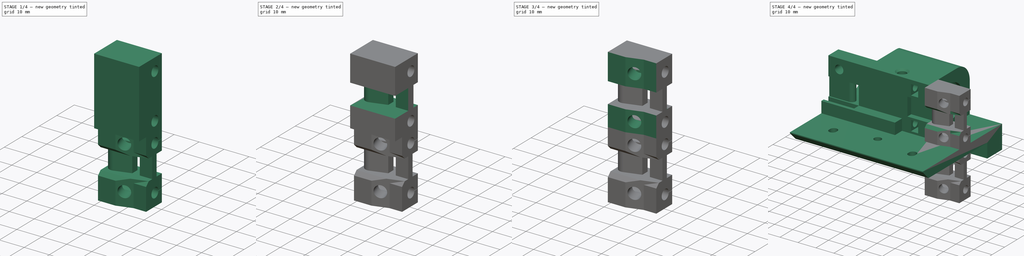
[diagram: build sequence overview — one tinted view per stage of 4, left to right]
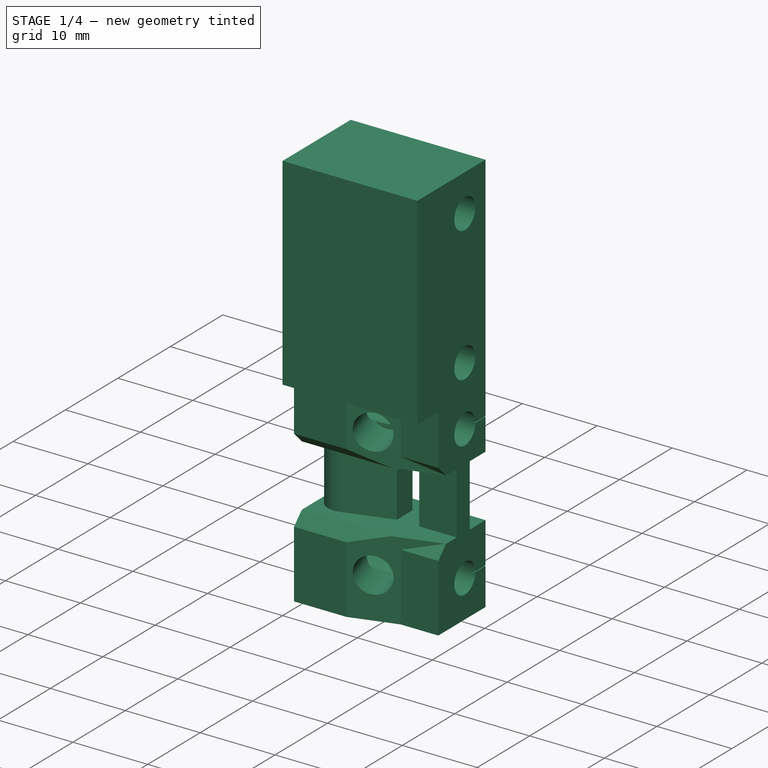
[diagram: stage 1 of 4 — iso view after this stage's code; geometry added in this stage tinted green]
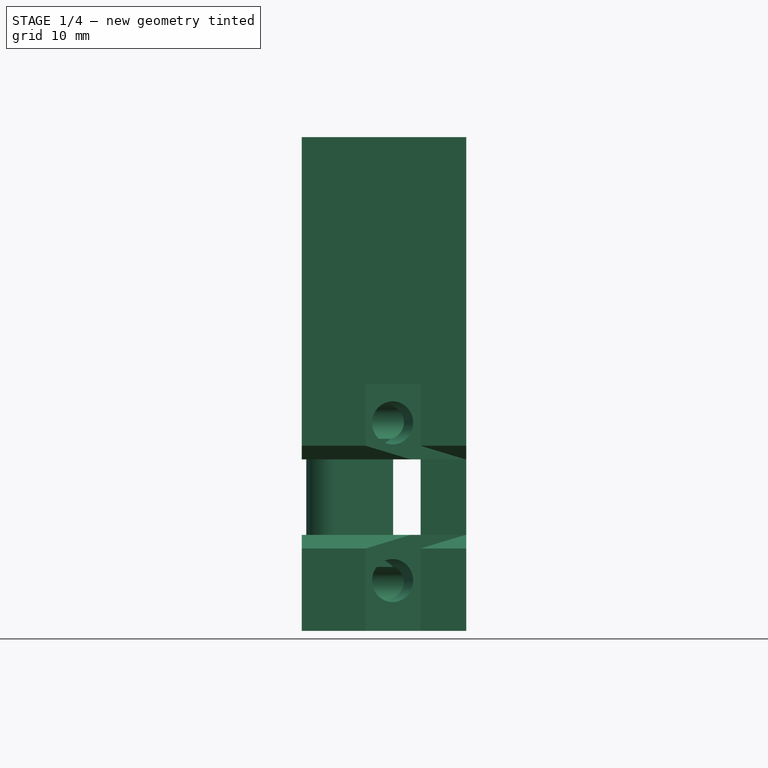
[diagram: stage 1 of 4 — front view after this stage's code; geometry added in this stage tinted green]
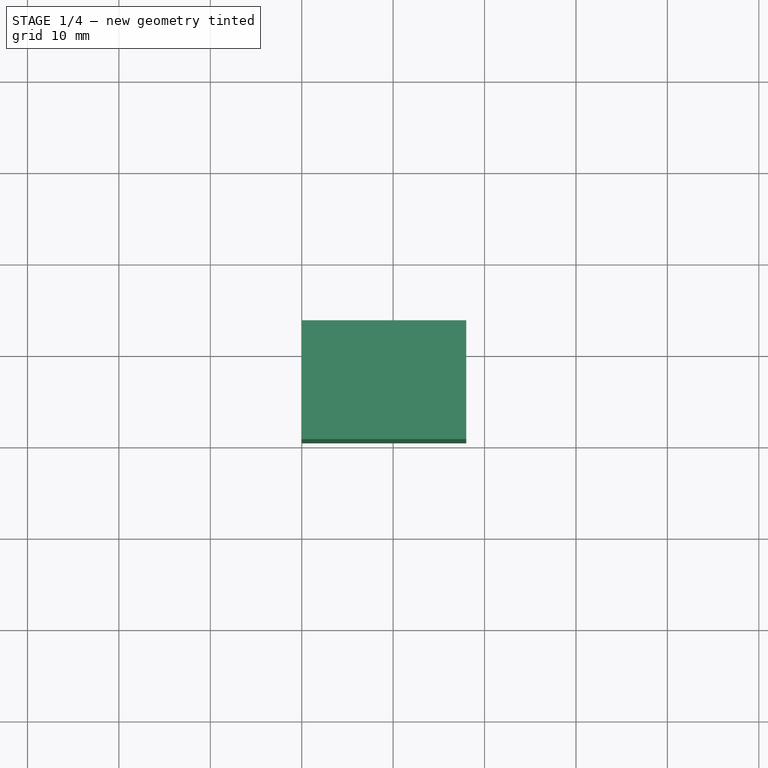
[diagram: stage 1 of 4 — top view after this stage's code; geometry added in this stage tinted green]
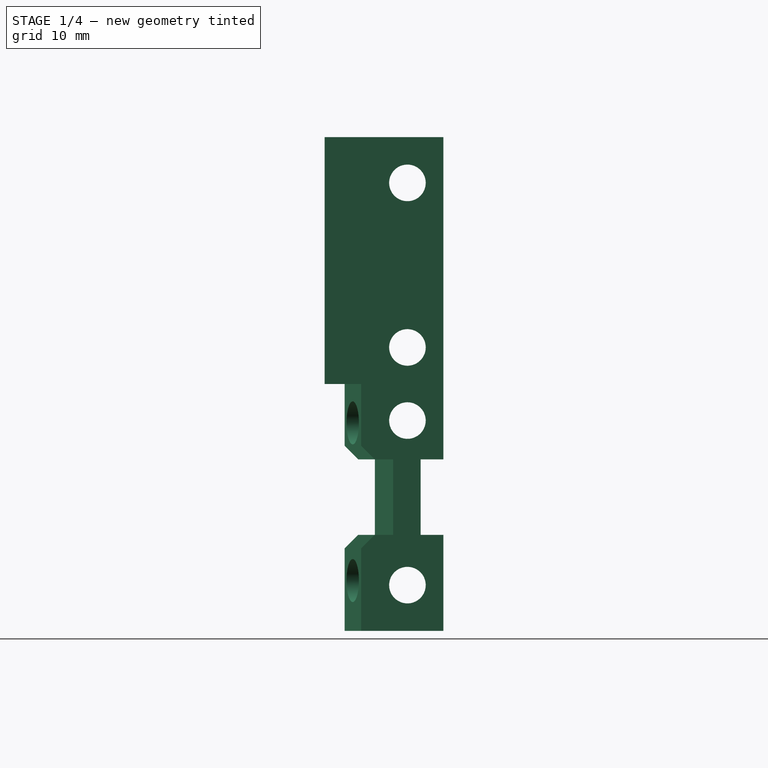
[diagram: stage 1 of 4 — right view after this stage's code; geometry added in this stage tinted green]
FCSTD DOCUMENT  (FreeCAD 0.17R13662 (Git))
Label: x_belt_tensioner
License: CreativeCommons Attribution-ShareAlike
LicenseURL: http://creativecommons.org/licenses/by-sa/4.0/
objects: Sketcher::SketchObject×9, PartDesign::Pocket×8, PartDesign::Pad×2, Part::FeaturePython×1, PartDesign::Chamfer×1, PartDesign::Body×1, Part::Feature×1, Part::Mirroring×1
note: 34 computed .brp shape members not serialized (recipe doc carries the construction recipe); baked Part::Feature solids carry a one-line shape summary decoded from their .brp

FEATURE [Sketcher::SketchObject] Sketch
  MapMode = 5
  Support = -> [XY_Plane]
  sketch-geometry (4):
    g0: LineSegment StartX=0 StartY=0 StartZ=0 EndX=18 EndY=0 EndZ=0
    g1: LineSegment StartX=18 StartY=0 StartZ=0 EndX=18 EndY=13 EndZ=0
    g2: LineSegment StartX=18 StartY=13 StartZ=0 EndX=0 EndY=13 EndZ=0
    g3: LineSegment StartX=0 StartY=13 StartZ=0 EndX=0 EndY=0 EndZ=0
  constraints (11):
    c: Coincident(g0,g1)
    c: Coincident(g1,g2)
    c: Coincident(g2,g3)
    c: Coincident(g3,g0)
    c: Horizontal(g0)
    c: Horizontal(g2)
    c: Vertical(g1)
    c: Vertical(g3)
    c: Coincident(g0,g-1)
    c: DistanceY(g3,g3) = 13
    c: DistanceX(g2,g2) = 18
FEATURE [PartDesign::Pad] Pad
  Length = 27
  Length2 = 100
  Profile = -> Sketch
  Type = 0
FEATURE [Sketcher::SketchObject] Sketch001
  MapMode = 5
  Placement = pos=(18,0,0) rot=(0.57735,0.57735,0.57735;2.0944rad)
  Support = -> [Pad]
  sketch-geometry (2):
    g0: Circle CenterX=9.0625 CenterY=22 CenterZ=0 NormalX=0 NormalY=0 NormalZ=1 AngleXU=0 Radius=2
    g1: Circle CenterX=9.0625 CenterY=4 CenterZ=0 NormalX=0 NormalY=0 NormalZ=1 AngleXU=0 Radius=2
  constraints (6):
    c: DistanceX(g1) = 9.0625
    c: DistanceY(g1) = 4
    c: DistanceX(g0,g1) = 0
    c: DistanceY(g0,g1) = -18
    c: Equal(g0,g1)
    c: Radius(g0) = 2
FEATURE [PartDesign::Pocket] Pocket
  BaseFeature = -> Pad
  Length = 5
  Length2 = 100
  Profile = -> Sketch001
  Type = 1
FEATURE [PartDesign::Body] Body
  Group = -> [Sketch,Pad,Sketch001,Pocket,Sketch002,Pocket001,Sketch003,Pocket002,Sketch004,Pad001,Pocket003,Sketch005,Pocket004,Sketch006,Pocket005,Sketch007,Pocket006,Chamfer,Sketch008,Pocket007]
  Origin = -> Origin
  Tip = -> Pocket007
FEATURE [Part::Feature] Pocket007001  label="Pocket008"
  shape: bbox 18 x 10.81 x 27 mm, 39 faces (baked)
FEATURE [Part::Mirroring] Part__Mirroring  label="Pocket008 (Mirror #1)"
  Base = (0,0,0)
  Normal = (0,0,1)
  Source = -> Pocket007001
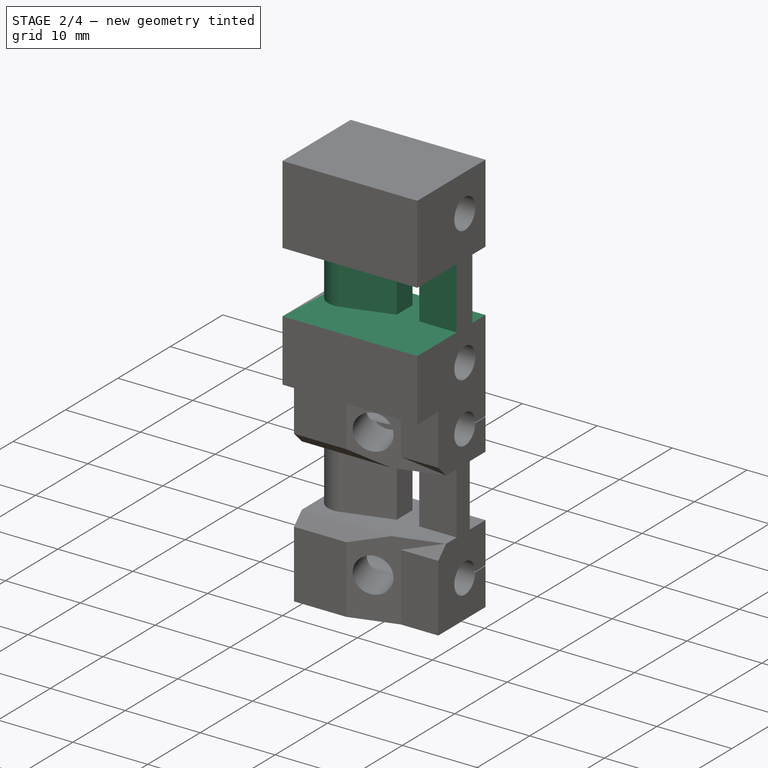
[diagram: stage 2 of 4 — iso view after this stage's code; geometry added in this stage tinted green]
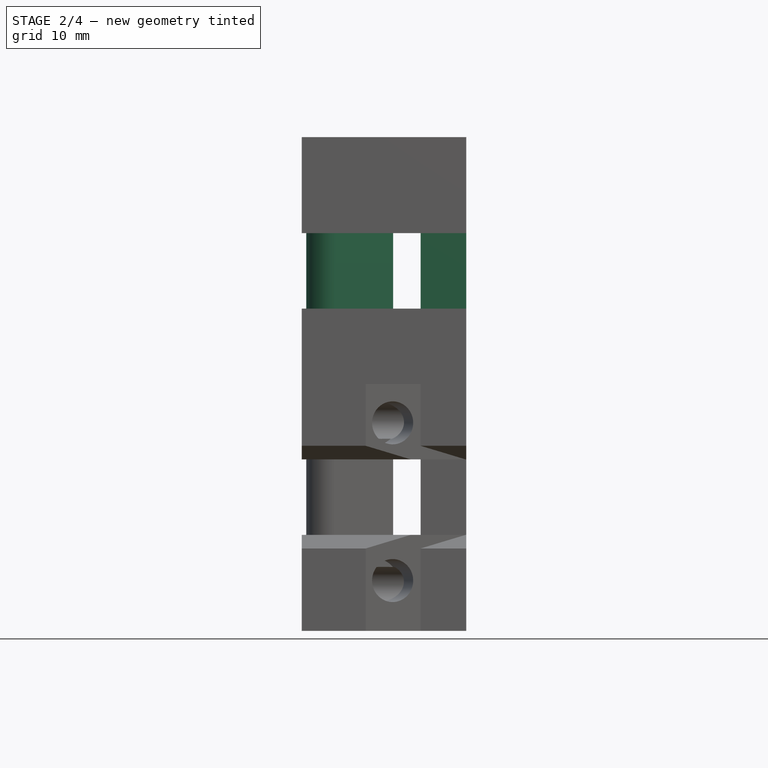
[diagram: stage 2 of 4 — front view after this stage's code; geometry added in this stage tinted green]
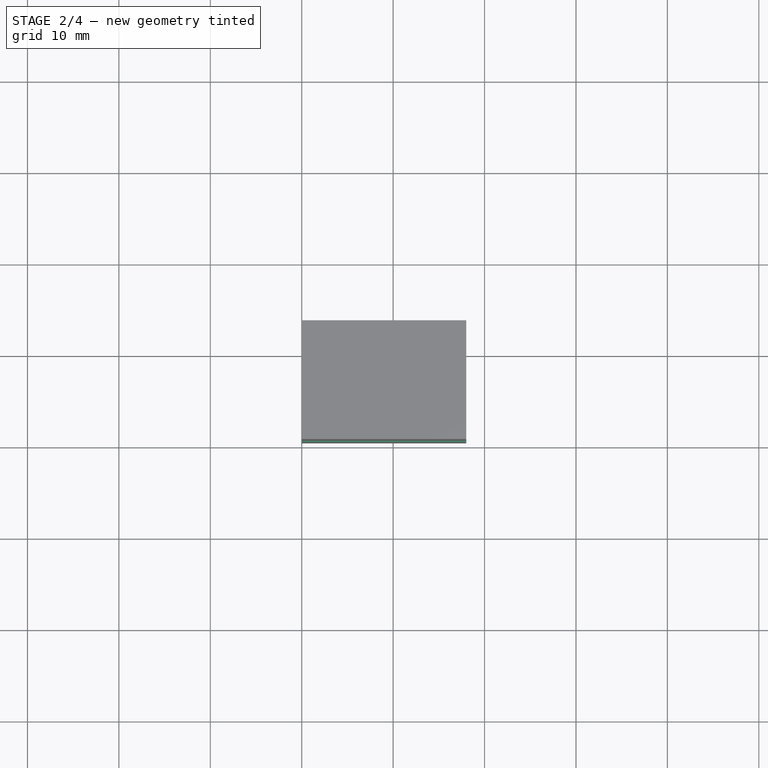
[diagram: stage 2 of 4 — top view after this stage's code; geometry added in this stage tinted green]
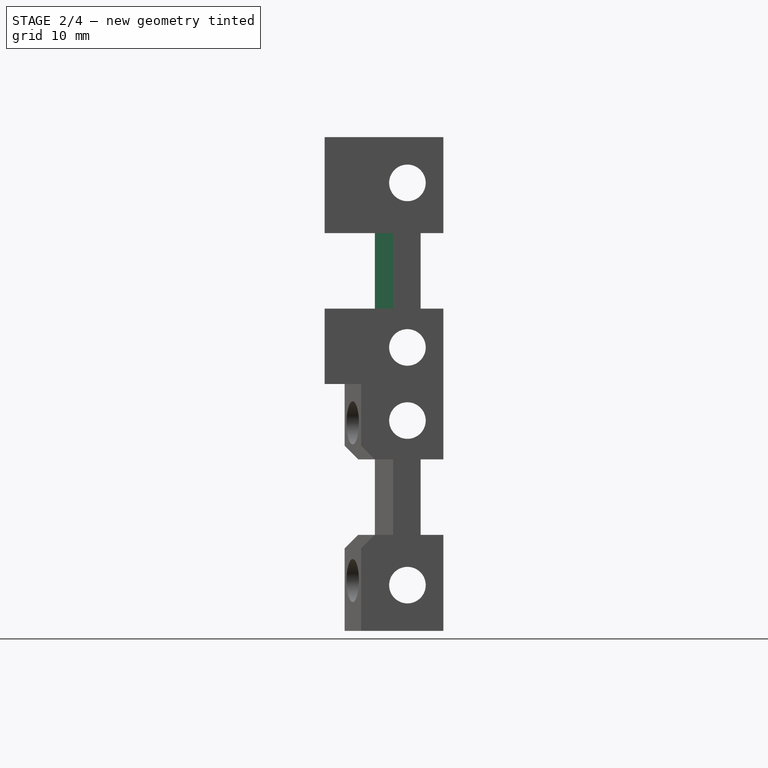
[diagram: stage 2 of 4 — right view after this stage's code; geometry added in this stage tinted green]
FEATURE [Sketcher::SketchObject] Sketch002
  ExternalGeometry = -> [Pocket]
  MapMode = 5
  Placement = pos=(18,0,0) rot=(0.57735,0.57735,0.57735;2.0944rad)
  Support = -> [Pocket]
  sketch-geometry (4):
    g0: LineSegment StartX=13 StartY=16.5 StartZ=0 EndX=10.5 EndY=16.5 EndZ=0
    g1: LineSegment StartX=10.5 StartY=16.5 StartZ=0 EndX=10.5 EndY=6.25 EndZ=0
    g2: LineSegment StartX=10.5 StartY=6.25 StartZ=0 EndX=13 EndY=6.25 EndZ=0
    g3: LineSegment StartX=13 StartY=6.25 StartZ=0 EndX=13 EndY=16.5 EndZ=0
  constraints (12):
    c: Coincident(g0,g1)
    c: Coincident(g1,g2)
    c: Coincident(g2,g3)
    c: Coincident(g3,g0)
    c: Horizontal(g0)
    c: Horizontal(g2)
    c: Vertical(g1)
    c: Vertical(g3)
    c: PointOnObject(g0,g-4)
    c: DistanceY(g0,g-4) = 10.5
    c: DistanceY(g3,g3) = 10.25
    c: DistanceX(g0,g0) = 2.5
FEATURE [PartDesign::Pocket] Pocket001
  BaseFeature = -> Pocket
  Length = 19
  Length2 = 100
  Profile = -> Sketch002
  Type = 0
FEATURE [Sketcher::SketchObject] Sketch003
  ExternalGeometry = -> [Pocket001]
  MapMode = 5
  Placement = pos=(0,0,6.25) rot=(0,0,1;0rad)
  Support = -> [Pocket001]
  sketch-geometry (10):
    g0: ArcOfCircle CenterX=3 CenterY=8 CenterZ=0 NormalX=0 NormalY=0 NormalZ=1 AngleXU=0 Radius=2.5 StartAngle=1.5708 EndAngle=5.00532
    g1: LineSegment StartX=18 StartY=7.5 StartZ=0 EndX=18 EndY=0 EndZ=0
    g2: LineSegment StartX=18 StartY=0 StartZ=0 EndX=0 EndY=0 EndZ=0
    g3: LineSegment StartX=0 StartY=0 StartZ=0 EndX=0 EndY=10.5 EndZ=0
    g4: LineSegment StartX=0 StartY=10.5 StartZ=0 EndX=3 EndY=10.5 EndZ=0
    g5: LineSegment StartX=13 StartY=7.5 StartZ=0 EndX=18 EndY=7.5 EndZ=0
    g6: LineSegment StartX=3.72189 StartY=5.60649 StartZ=0 EndX=10 EndY=7.5 EndZ=0
    g7: LineSegment StartX=10 StartY=7.5 StartZ=0 EndX=10 EndY=10.5 EndZ=0
    g8: LineSegment StartX=10 StartY=10.5 StartZ=0 EndX=13 EndY=10.5 EndZ=0
    g9: LineSegment StartX=13 StartY=10.5 StartZ=0 EndX=13 EndY=7.5 EndZ=0
  constraints (26):
    c: Radius(g0) = 2.5
    c: DistanceX(g-3,g0) = 3
    c: Coincident(g1,g-4)
    c: Coincident(g1,g2)
    c: Coincident(g2,g-1)
    c: Coincident(g2,g3)
    c: Coincident(g3,g4)
    c: Tangent(g4,g0) = 1.5708
    c: PointOnObject(g0,g-5)
    c: Coincident(g3,g-5)
    c: Tangent(g0,g6) = -1.5708
    c: Coincident(g6,g7)
    c: PointOnObject(g7,g-5)
    c: Vertical(g7)
    c: Coincident(g7,g8)
    c: PointOnObject(g8,g-5)
    c: Coincident(g8,g9)
    c: Vertical(g9)
    c: Coincident(g5,g9)
    c: Coincident(g1,g5)
    c: Vertical(g1)
    c: DistanceY(g9,g9) = 3
    c: Horizontal(g5)
    c: DistanceX(g8,g8) = 3
    c: Equal(g7,g9)
    c: DistanceX(g5,g5) = 5
FEATURE [PartDesign::Pocket] Pocket002
  BaseFeature = -> Pocket001
  Length = 10.25
  Length2 = 100
  Profile = -> Sketch003
  Reversed = true
  Type = 0
FEATURE [Sketcher::SketchObject] Sketch004
  ExternalGeometry = -> [Pocket002]
  MapMode = 5
  Placement = pos=(18,0,0) rot=(0.57735,0.57735,0.57735;2.0944rad)
  Support = -> [Pocket002]
  sketch-geometry (4):
    g0: LineSegment StartX=13 StartY=6.25 StartZ=0 EndX=0 EndY=6.25 EndZ=0
    g1: LineSegment StartX=0 StartY=6.25 StartZ=0 EndX=0 EndY=8.25 EndZ=0
    g2: LineSegment StartX=0 StartY=8.25 StartZ=0 EndX=13 EndY=8.25 EndZ=0
    g3: LineSegment StartX=13 StartY=8.25 StartZ=0 EndX=13 EndY=6.25 EndZ=0
  constraints (11):
    c: Coincident(g0,g1)
    c: Coincident(g1,g2)
    c: Coincident(g2,g3)
    c: Coincident(g3,g0)
    c: Horizontal(g0)
    c: Horizontal(g2)
    c: Vertical(g1)
    c: Vertical(g3)
    c: Coincident(g0,g-3)
    c: Coincident(g0,g-4)
    c: DistanceY(g1,g1) = 2
FEATURE [PartDesign::Pad] Pad001
  BaseFeature = -> Pocket002
  Length = 18
  Length2 = 100
  Profile = -> Sketch004
  Reversed = true
  Type = 0
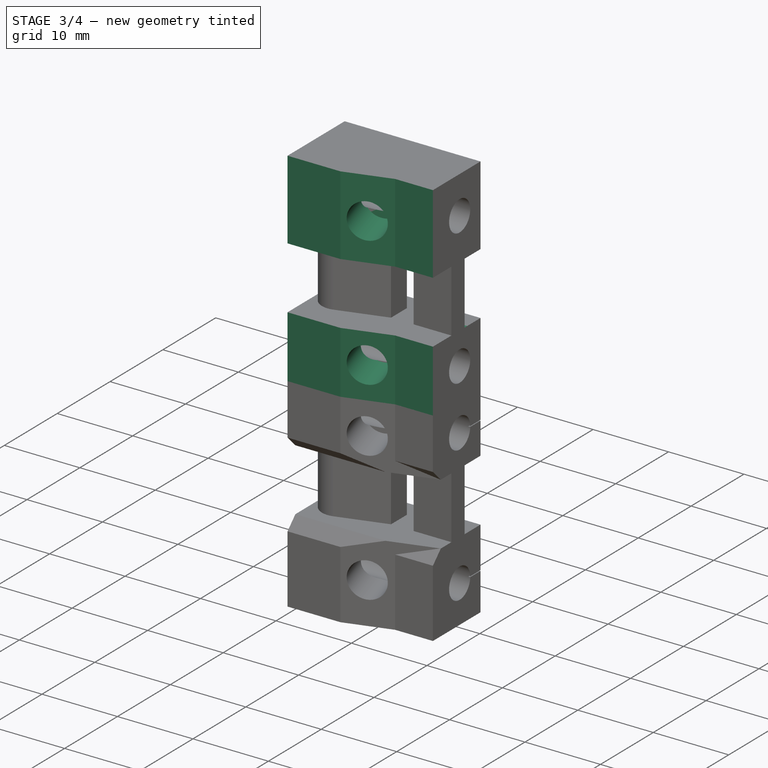
[diagram: stage 3 of 4 — iso view after this stage's code; geometry added in this stage tinted green]
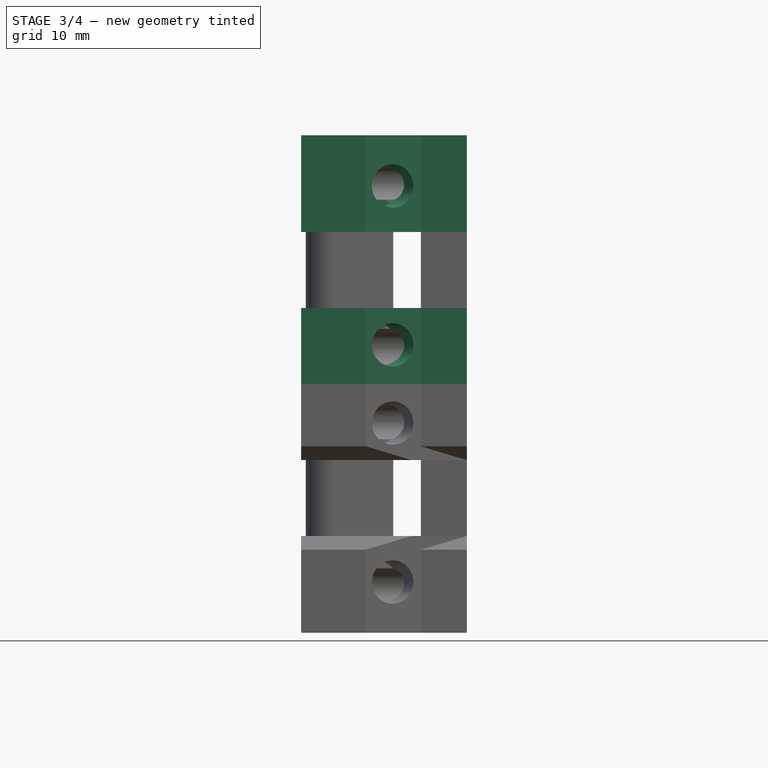
[diagram: stage 3 of 4 — front view after this stage's code; geometry added in this stage tinted green]
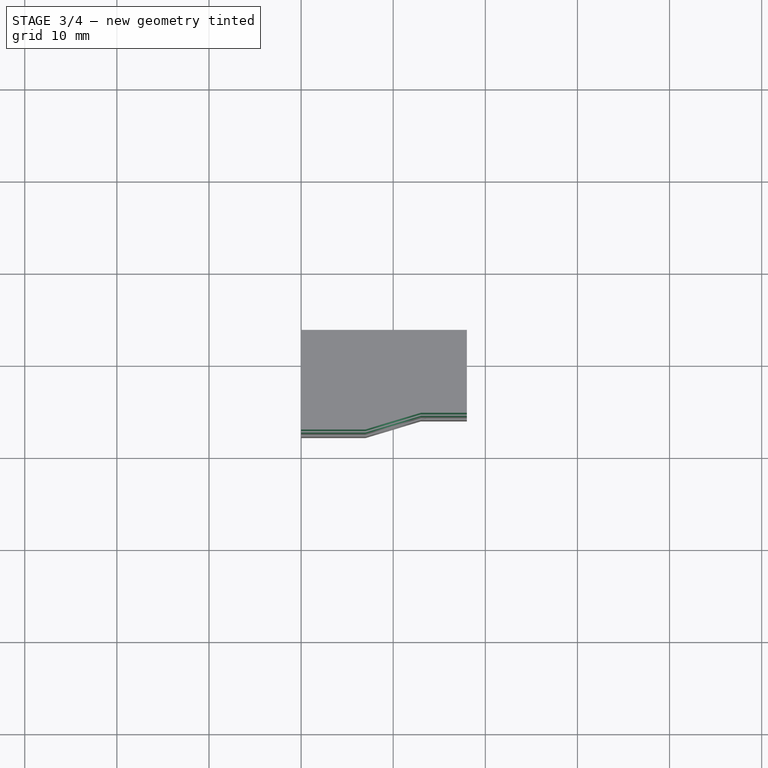
[diagram: stage 3 of 4 — top view after this stage's code; geometry added in this stage tinted green]
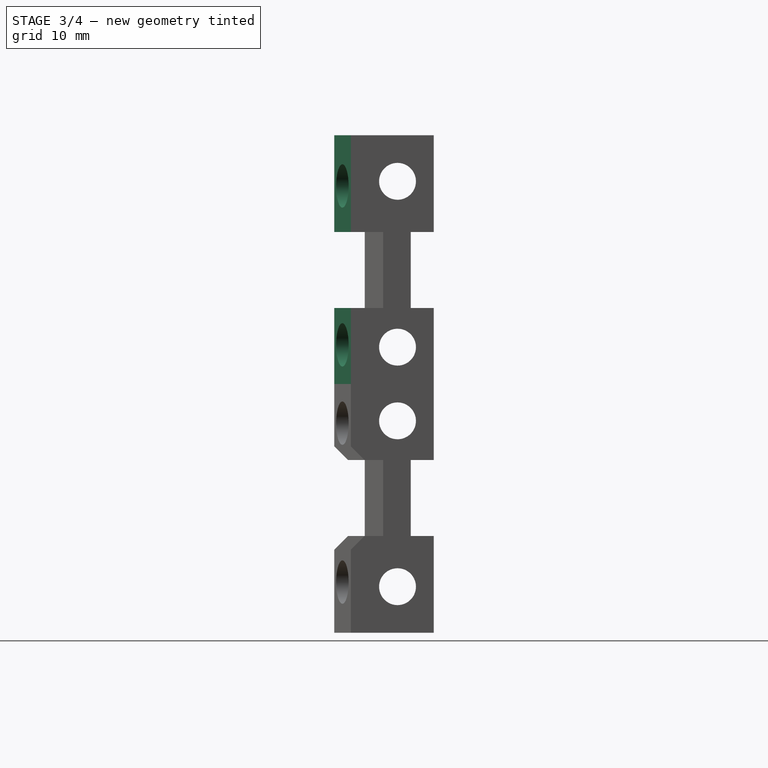
[diagram: stage 3 of 4 — right view after this stage's code; geometry added in this stage tinted green]
FEATURE [PartDesign::Pocket] Pocket003
  BaseFeature = -> Pad001
  Length = 0.5
  Length2 = 100
  Profile = -> Pad001 [Face17]
  Type = 0
FEATURE [Sketcher::SketchObject] Sketch005
  ExternalGeometry = -> [Pocket003]
  MapMode = 5
  Placement = pos=(0,0,27) rot=(0,0,1;0rad)
  Support = -> [Pocket003]
  sketch-geometry (4):
    g0: LineSegment StartX=-0.262398 StartY=0 StartZ=0 EndX=13 EndY=4 EndZ=0
    g1: LineSegment StartX=13 StartY=4 StartZ=0 EndX=18 EndY=4 EndZ=0
    g2: LineSegment StartX=18 StartY=4 StartZ=0 EndX=18 EndY=0 EndZ=0
    g3: LineSegment StartX=18 StartY=0 StartZ=0 EndX=-0.262398 EndY=0 EndZ=0
  constraints (11):
    c: PointOnObject(g0,g-3)
    c: Coincident(g0,g1)
    c: PointOnObject(g1,g-4)
    c: Horizontal(g1)
    c: Coincident(g1,g2)
    c: Coincident(g2,g-4)
    c: Coincident(g2,g3)
    c: Coincident(g3,g0)
    c: Parallel(g-5,g0)
    c: DistanceX(g1,g1) = 5
    c: DistanceY(g2,g2) = 4
FEATURE [PartDesign::Pocket] Pocket004
  BaseFeature = -> Pocket003
  Length = 5
  Length2 = 100
  Profile = -> Sketch005
  Type = 1
FEATURE [Sketcher::SketchObject] Sketch006
  ExternalGeometry = -> [Pocket004]
  MapMode = 5
  Placement = pos=(-0.0218789,0.0725415,0) rot=(0.978923,0.144411,0.144411;1.5921rad)
  Support = -> [Pocket004]
  sketch-geometry (2):
    g0: Circle CenterX=10.4082 CenterY=21.5 CenterZ=0 NormalX=0 NormalY=0 NormalZ=1 AngleXU=0 Radius=2.35
    g1: Circle CenterX=10.4082 CenterY=4.25 CenterZ=0 NormalX=0 NormalY=0 NormalZ=1 AngleXU=0 Radius=2.35
  constraints (6):
    c: Equal(g1,g0)
    c: Radius(g0) = 2.35
    c: DistanceX(g0,g1) = 0
    c: DistanceY(g0,g1) = -17.25
    c: DistanceX(g1) = 10.4082
    c: DistanceY(g1) = 4.25
FEATURE [PartDesign::Pocket] Pocket005
  BaseFeature = -> Pocket004
  Length = 6
  Length2 = 100
  Profile = -> Sketch006
  Type = 0
FEATURE [Sketcher::SketchObject] Sketch007
  ExternalGeometry = -> [Pocket005]
  MapMode = 5
  Placement = pos=(0,0,0) rot=(1,0,0;3.14159rad)
  Support = -> [Pocket005]
  sketch-geometry (4):
    g0: LineSegment StartX=0 StartY=-0.0791403 StartZ=0 EndX=7 EndY=-0.0791403 EndZ=0
    g1: LineSegment StartX=7 StartY=-0.0791403 StartZ=0 EndX=7 EndY=-2.19037 EndZ=0
    g2: LineSegment StartX=7 StartY=-2.19037 StartZ=0 EndX=0 EndY=-2.19037 EndZ=0
    g3: LineSegment StartX=0 StartY=-2.19037 StartZ=0 EndX=0 EndY=-0.0791403 EndZ=0
  constraints (11):
    c: Coincident(g0,g1)
    c: Coincident(g1,g2)
    c: Coincident(g2,g3)
    c: Coincident(g3,g0)
    c: Horizontal(g0)
    c: Horizontal(g2)
    c: Vertical(g1)
    c: Vertical(g3)
    c: PointOnObject(g1,g-4)
    c: Coincident(g0,g-3)
    c: DistanceX(g0,g0) = 7
FEATURE [PartDesign::Pocket] Pocket006
  BaseFeature = -> Pocket005
  Length = 5
  Length2 = 100
  Profile = -> Sketch007
  Type = 1
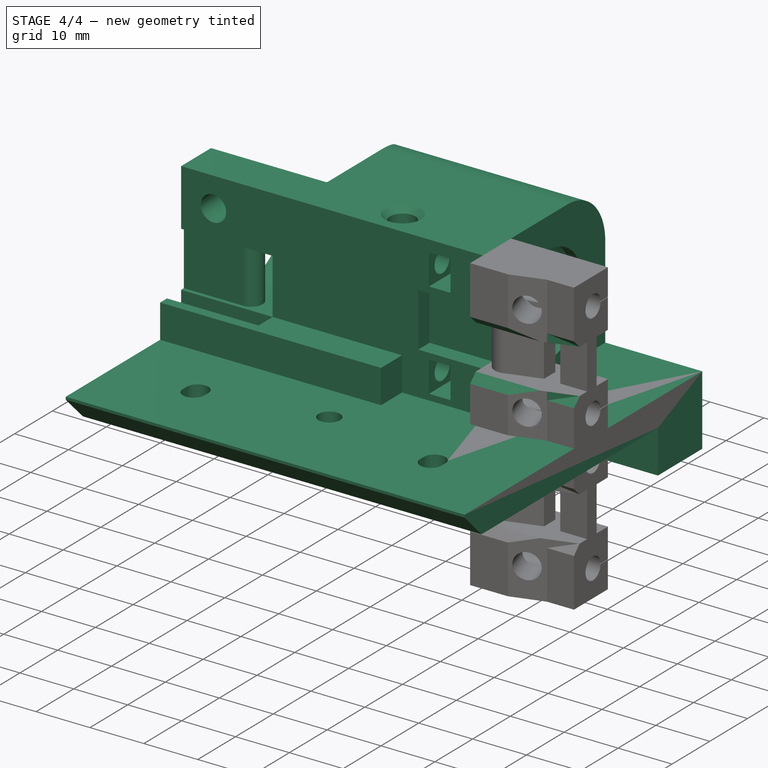
[diagram: stage 4 of 4 — iso view after this stage's code; geometry added in this stage tinted green]
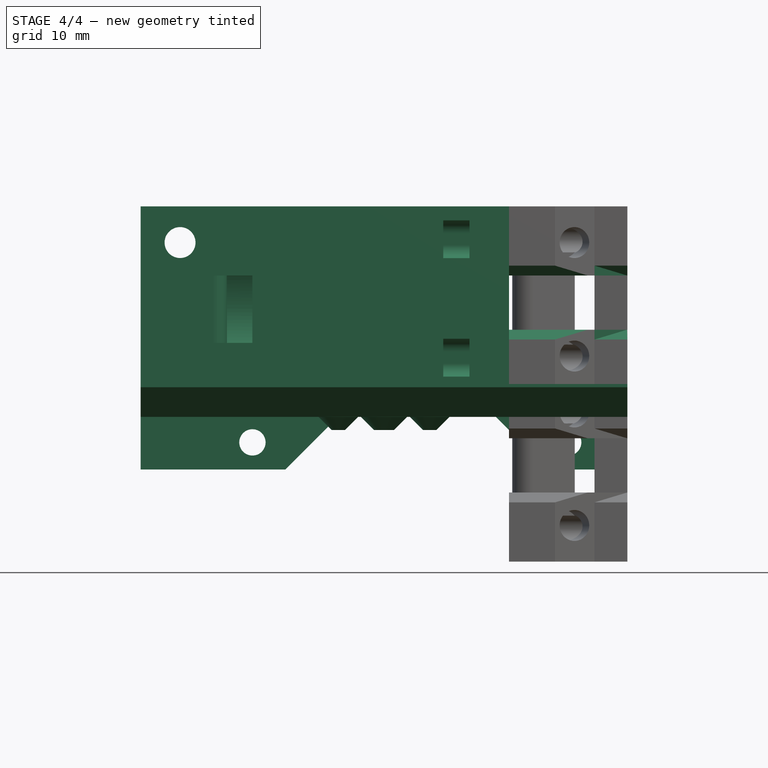
[diagram: stage 4 of 4 — front view after this stage's code; geometry added in this stage tinted green]
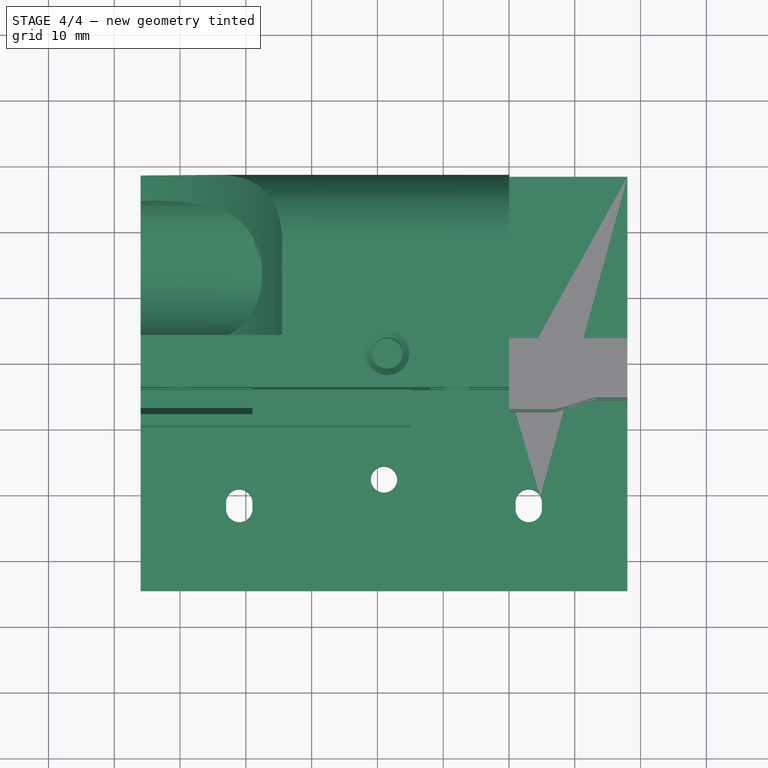
[diagram: stage 4 of 4 — top view after this stage's code; geometry added in this stage tinted green]
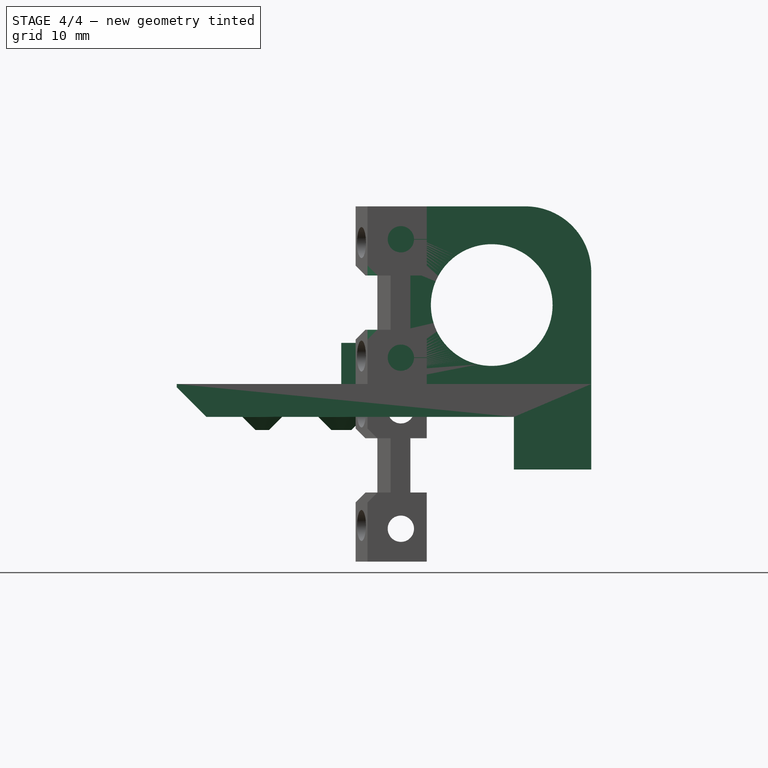
[diagram: stage 4 of 4 — right view after this stage's code; geometry added in this stage tinted green]
FEATURE [Part::FeaturePython] x_carriage_V4_1_01  # a2plus imported part (geometry in sourceFile) (typed FeaturePython)
  Placement = pos=(-56,38,-13) rot=(0,0,1;0rad)
  fixedPosition = true
  sourceFile = <userpath>/Projects/taz-quiver/Production_parts/Printed_parts/X/x_carriage/x_carriage_V4.1.fcstd
  timeLastImport = 1.5283e+09
  updateColors = true
FEATURE [PartDesign::Chamfer] Chamfer
  Base = -> Pocket006 [Edge23,Edge92,Edge89,Edge15]
  BaseFeature = -> Pocket006
  Size = 1.49
FEATURE [Sketcher::SketchObject] Sketch008
  ExternalGeometry = -> [Chamfer]
  MapMode = 5
  Placement = pos=(18,0,0) rot=(0.57735,0.57735,0.57735;2.0944rad)
  Support = -> [Chamfer]
  sketch-geometry (10):
    g0: LineSegment [constr] StartX=9.0625 StartY=22 StartZ=0 EndX=13 EndY=22 EndZ=0
    g1: LineSegment [constr] StartX=9.0625 StartY=4 StartZ=0 EndX=13 EndY=4 EndZ=0
    g2: LineSegment StartX=11.0619 StartY=22.05 StartZ=0 EndX=13 EndY=22.05 EndZ=0
    g3: LineSegment StartX=13 StartY=22.05 StartZ=0 EndX=13 EndY=21.95 EndZ=0
    g4: LineSegment StartX=13 StartY=21.95 StartZ=0 EndX=11.0619 EndY=21.95 EndZ=0
    g5: LineSegment StartX=11.0619 StartY=21.95 StartZ=0 EndX=11.0619 EndY=22.05 EndZ=0
    g6: LineSegment StartX=11.0619 StartY=4.05 StartZ=0 EndX=13 EndY=4.05 EndZ=0
    g7: LineSegment StartX=13 StartY=4.05 StartZ=0 EndX=13 EndY=3.95 EndZ=0
    g8: LineSegment StartX=13 StartY=3.95 StartZ=0 EndX=11.0619 EndY=3.95 EndZ=0
    g9: LineSegment StartX=11.0619 StartY=3.95 StartZ=0 EndX=11.0619 EndY=4.05 EndZ=0
  constraints (30):
    c: Coincident(g0,g-3)
    c: PointOnObject(g0,g-4)
    c: Horizontal(g0)
    c: Coincident(g1,g-5)
    c: PointOnObject(g1,g-6)
    c: Horizontal(g1)
    c: Coincident(g2,g3)
    c: Coincident(g3,g4)
    c: Coincident(g4,g5)
    c: Coincident(g5,g2)
    c: Horizontal(g2)
    c: Horizontal(g4)
    c: Vertical(g3)
    c: Vertical(g5)
    c: PointOnObject(g2,g-3)
    c: PointOnObject(g3,g-4)
    c: Symmetric(g2,g3,g0)
    c: Distance(g5) = 0.1
    c: Coincident(g6,g7)
    c: Coincident(g7,g8)
    c: Coincident(g8,g9)
    c: Coincident(g9,g6)
    c: Horizontal(g6)
    c: Horizontal(g8)
    c: Vertical(g7)
    c: Vertical(g9)
    c: PointOnObject(g6,g-5)
    c: PointOnObject(g7,g-6)
    c: Symmetric(g6,g7,g1)
    c: Distance(g9) = 0.1
FEATURE [PartDesign::Pocket] Pocket007
  BaseFeature = -> Chamfer
  Length = 0.25
  Length2 = 100
  Profile = -> Sketch008
  Type = 0
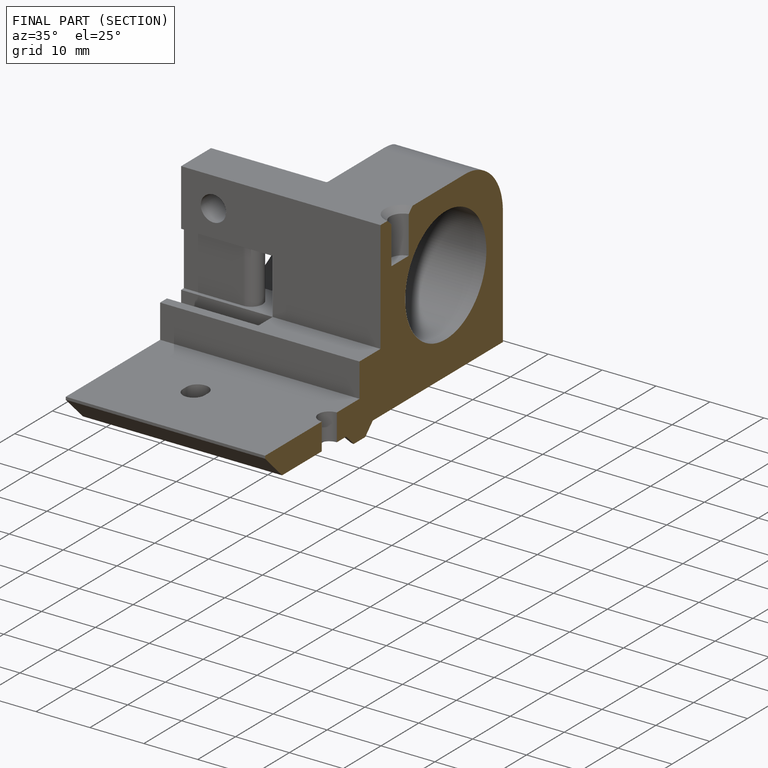
[diagram: finished part — half-section view (interior)]
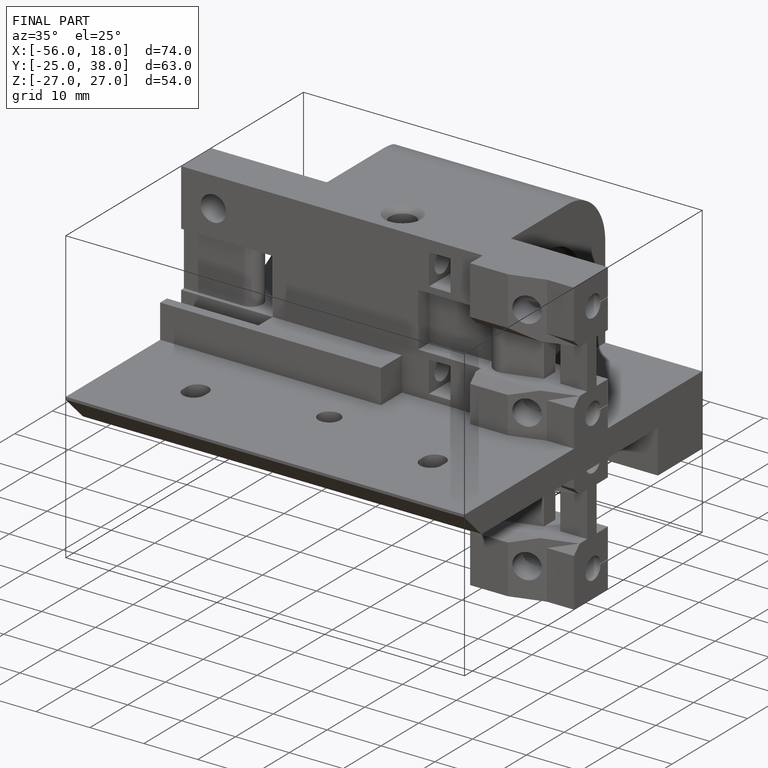
[diagram: finished part — iso view with bounding-box wireframe]
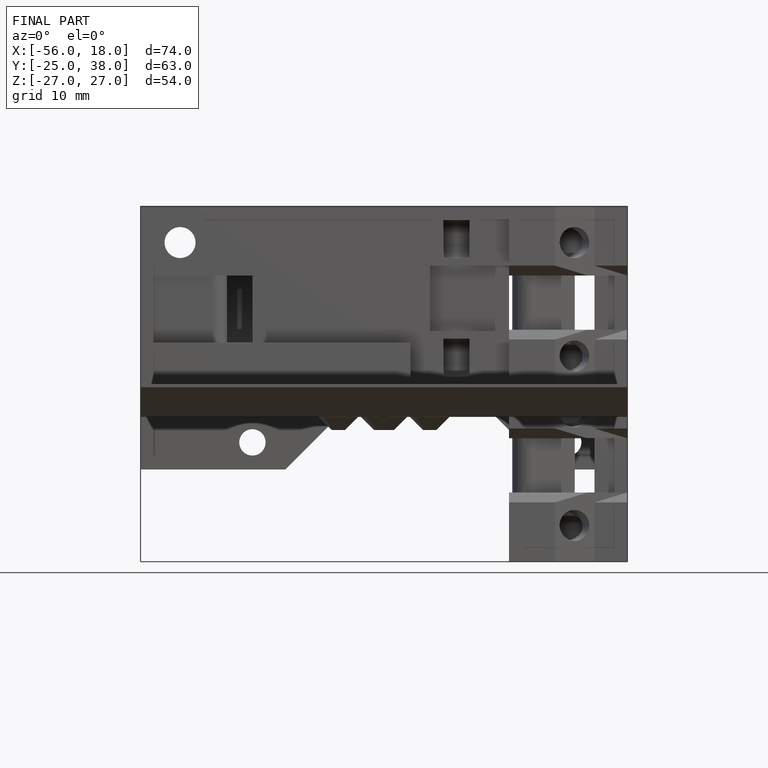
[diagram: finished part — front view with bounding-box wireframe]
